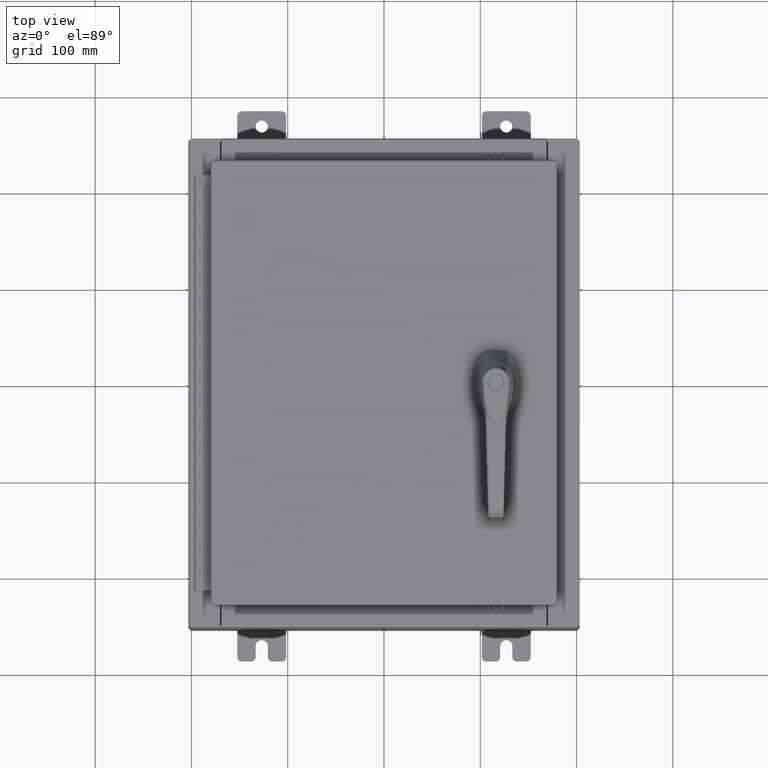
[diagram: clean part render]
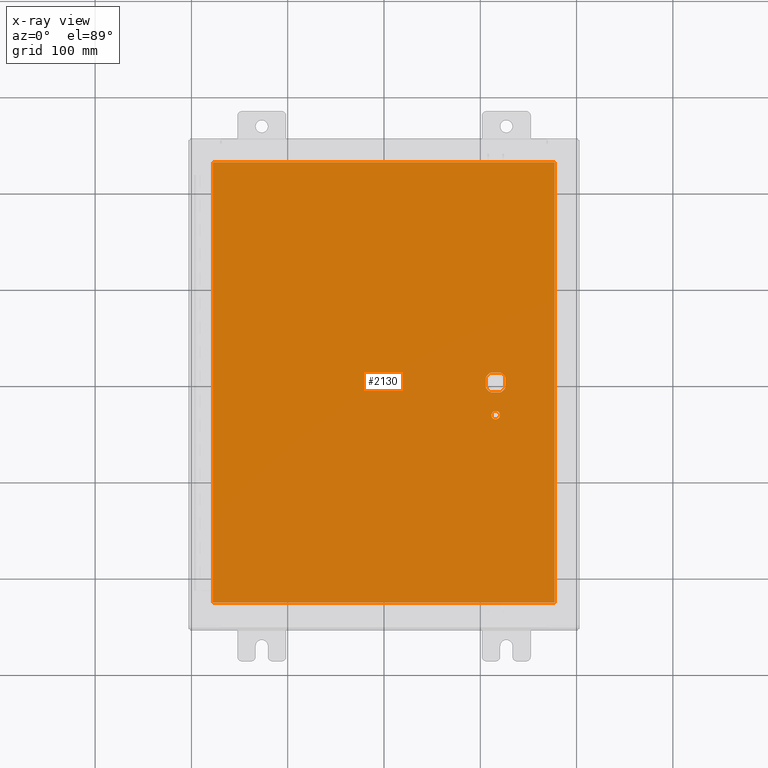
[diagram: x-ray — body ghosted, one internal face saturated and labeled with its STEP entity id]
A machine part, top view, then the same camera in x-ray: the body is ghosted and one INTERNAL B-rep face — a face not visible from any outside direction — is saturated and labeled: STEP entity #2130.
In plain terms, the highlighted planar face has unit normal (0, 0, -1).
Its self-contained STEP definition (entity closure, byte-faithful):
#1655 = DIRECTION ( 'NONE',  ( -1.000000000000000000, 0.0000000000000000000, -0.0000000000000000000 ) ) ;
#2130 = ADVANCED_FACE ( 'NONE', ( #65653, #20767, #107863 ), #76828, .T. ) ;
#3277 = DIRECTION ( 'NONE',  ( -1.000000000000000000, 0.0000000000000000000, 0.0000000000000000000 ) ) ;
#3808 = LINE ( 'NONE', #54818, #82957 ) ;
#4059 = ORIENTED_EDGE ( 'NONE', *, *, #90315, .T. ) ;
#5158 = VECTOR ( 'NONE', #62514, 39.37007874015748100 ) ;
#5991 = CARTESIAN_POINT ( 'NONE',  ( 4.175000000000076200, 0.2002273707563080300, -0.07470000000000003000 ) ) ;
#6260 = CARTESIAN_POINT ( 'NONE',  ( 4.406500000000002100, -1.338000000000000100, -0.07470000000000003000 ) ) ;
#7059 = CIRCLE ( 'NONE', #13108, 0.4499999999999156900 ) ;
#9308 = CARTESIAN_POINT ( 'NONE',  ( 6.990300000000002200, -9.006299999999997800, -0.07470000000000021100 ) ) ;
#9763 = DIRECTION ( 'NONE',  ( -0.0000000000000000000, -0.0000000000000000000, 1.000000000000000000 ) ) ;
#10054 = CARTESIAN_POINT ( 'NONE',  ( 4.578000000000002100, -1.338000000000000100, -0.07470000000000003000 ) ) ;
#10498 = LINE ( 'NONE', #44274, #97574 ) ;
#10701 = DIRECTION ( 'NONE',  ( 0.0000000000000000000, -1.000000000000000000, 0.0000000000000000000 ) ) ;
#11183 = VECTOR ( 'NONE', #51341, 39.37007874015748100 ) ;
#11954 = CARTESIAN_POINT ( 'NONE',  ( 4.175000000000076200, 0.0000000000000000000, -0.07470000000000003000 ) ) ;
#12486 = ORIENTED_EDGE ( 'NONE', *, *, #73959, .T. ) ;
#13076 = VECTOR ( 'NONE', #26271, 39.37007874015748100 ) ;
#13108 = AXIS2_PLACEMENT_3D ( 'NONE', #85582, #35050, #94031 ) ;
#14029 = EDGE_CURVE ( 'NONE', #91412, #40145, #105354, .T. ) ;
#17669 = AXIS2_PLACEMENT_3D ( 'NONE', #104328, #53826, #3277 ) ;
#18594 = DIRECTION ( 'NONE',  ( -1.000000000000000000, 0.0000000000000000000, 0.0000000000000000000 ) ) ;
#18632 = CARTESIAN_POINT ( 'NONE',  ( -6.990299999999997700, 9.006299999999999500, -0.07470000000000000300 ) ) ;
#19094 = EDGE_CURVE ( 'NONE', #52332, #63675, #43601, .T. ) ;
#19163 = ORIENTED_EDGE ( 'NONE', *, *, #64073, .T. ) ;
#20767 = FACE_OUTER_BOUND ( 'NONE', #101714, .T. ) ;
#21519 = EDGE_CURVE ( 'NONE', #106551, #77066, #32925, .T. ) ;
#22944 = VERTEX_POINT ( 'NONE', #88454 ) ;
#23485 = CARTESIAN_POINT ( 'NONE',  ( 4.778227370756312100, -0.4029999999999252000, -0.07470000000000003000 ) ) ;
#23621 = DIRECTION ( 'NONE',  ( 1.000000000000000000, 0.0000000000000000000, 0.0000000000000000000 ) ) ;
#25020 = EDGE_LOOP ( 'NONE', ( #4059, #89591, #37312, #69638, #103235, #12486, #79730, #72258 ) ) ;
#26271 = DIRECTION ( 'NONE',  ( 0.0000000000000000000, 1.000000000000000000, 0.0000000000000000000 ) ) ;
#26737 = CARTESIAN_POINT ( 'NONE',  ( -6.990299999999996800, -9.006299999999997800, -0.07470000000000000300 ) ) ;
#27256 = CARTESIAN_POINT ( 'NONE',  ( 4.578000000000002100, 0.0000000000000000000, -0.07470000000000003000 ) ) ;
#28432 = CARTESIAN_POINT ( 'NONE',  ( 4.980999999999927900, -0.2002273707563080300, -0.07470000000000003000 ) ) ;
#29225 = ORIENTED_EDGE ( 'NONE', *, *, #41749, .F. ) ;
#30460 = VERTEX_POINT ( 'NONE', #26737 ) ;
#31049 = CIRCLE ( 'NONE', #80181, 0.4499999999999156900 ) ;
#32925 = LINE ( 'NONE', #9308, #13076 ) ;
#34282 = VERTEX_POINT ( 'NONE', #6260 ) ;
#35050 = DIRECTION ( 'NONE',  ( -0.0000000000000000000, -0.0000000000000000000, 1.000000000000000000 ) ) ;
#35051 = DIRECTION ( 'NONE',  ( 0.0000000000000000000, -1.000000000000000000, 0.0000000000000000000 ) ) ;
#35455 = AXIS2_PLACEMENT_3D ( 'NONE', #60327, #9763, #68828 ) ;
#35772 = DIRECTION ( 'NONE',  ( -1.000000000000000000, 0.0000000000000000000, 0.0000000000000000000 ) ) ;
#36146 = CIRCLE ( 'NONE', #53896, 0.4499999999999156900 ) ;
#37258 = CARTESIAN_POINT ( 'NONE',  ( 4.377772629243692900, -0.4029999999999250300, -0.07470000000000003000 ) ) ;
#37312 = ORIENTED_EDGE ( 'NONE', *, *, #57536, .T. ) ;
#38726 = VERTEX_POINT ( 'NONE', #5991 ) ;
#38793 = DIRECTION ( 'NONE',  ( -1.000000000000000000, 0.0000000000000000000, 0.0000000000000000000 ) ) ;
#39184 = VECTOR ( 'NONE', #38793, 39.37007874015748100 ) ;
#39303 = ORIENTED_EDGE ( 'NONE', *, *, #55820, .F. ) ;
#39822 = CARTESIAN_POINT ( 'NONE',  ( 4.578000000000002100, 0.0000000000000000000, -0.07470000000000003000 ) ) ;
#40145 = VERTEX_POINT ( 'NONE', #51263 ) ;
#41749 = EDGE_CURVE ( 'NONE', #42878, #30460, #10498, .T. ) ;
#42823 = CARTESIAN_POINT ( 'NONE',  ( -6.990299999999997700, -9.006299999999997800, -0.07470000000000021100 ) ) ;
#42878 = VERTEX_POINT ( 'NONE', #18632 ) ;
#43601 = LINE ( 'NONE', #77050, #77828 ) ;
#44274 = CARTESIAN_POINT ( 'NONE',  ( -6.990299999999997700, 9.006300000000001300, -0.07470000000000019700 ) ) ;
#44566 = VERTEX_POINT ( 'NONE', #88724 ) ;
#46863 = EDGE_CURVE ( 'NONE', #40145, #38726, #31049, .T. ) ;
#48303 = DIRECTION ( 'NONE',  ( -1.000000000000000000, 0.0000000000000000000, 0.0000000000000000000 ) ) ;
#48381 = CARTESIAN_POINT ( 'NONE',  ( 6.990300000000002200, -9.006299999999997800, -0.07470000000000000300 ) ) ;
#50096 = LINE ( 'NONE', #11954, #5158 ) ;
#50411 = CARTESIAN_POINT ( 'NONE',  ( 6.990300000000001300, 9.006300000000001300, -0.07470000000000000300 ) ) ;
#50906 = CARTESIAN_POINT ( 'NONE',  ( 4.778227370756312100, 0.4029999999999250300, -0.07470000000000003000 ) ) ;
#51263 = CARTESIAN_POINT ( 'NONE',  ( 4.377772629243692900, 0.4029999999999252000, -0.07470000000000003000 ) ) ;
#51341 = DIRECTION ( 'NONE',  ( 1.000000000000000000, -0.0000000000000000000, -0.0000000000000000000 ) ) ;
#51358 = VERTEX_POINT ( 'NONE', #37258 ) ;
#52188 = DIRECTION ( 'NONE',  ( 0.0000000000000000000, 0.0000000000000000000, -1.000000000000000000 ) ) ;
#52332 = VERTEX_POINT ( 'NONE', #90215 ) ;
#53826 = DIRECTION ( 'NONE',  ( -0.0000000000000000000, -0.0000000000000000000, 1.000000000000000000 ) ) ;
#53896 = AXIS2_PLACEMENT_3D ( 'NONE', #39822, #98790, #48303 ) ;
#54818 = CARTESIAN_POINT ( 'NONE',  ( 6.990300000000002200, 9.006300000000001300, -0.07470000000000076600 ) ) ;
#55820 = EDGE_CURVE ( 'NONE', #30460, #106551, #61384, .T. ) ;
#57536 = EDGE_CURVE ( 'NONE', #52332, #91412, #7059, .T. ) ;
#60327 = CARTESIAN_POINT ( 'NONE',  ( 4.578000000000002100, 0.0000000000000000000, -0.07470000000000003000 ) ) ;
#61354 = EDGE_LOOP ( 'NONE', ( #72358, #19163 ) ) ;
#61384 = LINE ( 'NONE', #42823, #11183 ) ;
#62514 = DIRECTION ( 'NONE',  ( 0.0000000000000000000, -1.000000000000000000, 0.0000000000000000000 ) ) ;
#63229 = EDGE_CURVE ( 'NONE', #77066, #42878, #3808, .T. ) ;
#63675 = VERTEX_POINT ( 'NONE', #28432 ) ;
#64073 = EDGE_CURVE ( 'NONE', #34282, #22944, #88148, .T. ) ;
#65653 = FACE_BOUND ( 'NONE', #61354, .T. ) ;
#67235 = ORIENTED_EDGE ( 'NONE', *, *, #21519, .F. ) ;
#68828 = DIRECTION ( 'NONE',  ( -1.000000000000000000, 8.881784197001256300E-016, 0.0000000000000000000 ) ) ;
#69122 = DIRECTION ( 'NONE',  ( -0.0000000000000000000, -0.0000000000000000000, 1.000000000000000000 ) ) ;
#69638 = ORIENTED_EDGE ( 'NONE', *, *, #14029, .T. ) ;
#72258 = ORIENTED_EDGE ( 'NONE', *, *, #102541, .T. ) ;
#72358 = ORIENTED_EDGE ( 'NONE', *, *, #103905, .T. ) ;
#73959 = EDGE_CURVE ( 'NONE', #38726, #44566, #50096, .T. ) ;
#75509 = ORIENTED_EDGE ( 'NONE', *, *, #63229, .F. ) ;
#76828 = PLANE ( 'NONE',  #109125 ) ;
#77047 = CIRCLE ( 'NONE', #89019, 0.1715000000000000700 ) ;
#77050 = CARTESIAN_POINT ( 'NONE',  ( 4.980999999999927900, 0.0000000000000000000, -0.07470000000000003000 ) ) ;
#77066 = VERTEX_POINT ( 'NONE', #50411 ) ;
#77828 = VECTOR ( 'NONE', #35051, 39.37007874015748100 ) ;
#79730 = ORIENTED_EDGE ( 'NONE', *, *, #89468, .T. ) ;
#80181 = AXIS2_PLACEMENT_3D ( 'NONE', #27256, #86278, #35772 ) ;
#82609 = CARTESIAN_POINT ( 'NONE',  ( 0.0000000000000000000, -0.4029999999999252000, -0.07470000000000003000 ) ) ;
#82957 = VECTOR ( 'NONE', #105299, 39.37007874015748100 ) ;
#85474 = VERTEX_POINT ( 'NONE', #23485 ) ;
#85582 = CARTESIAN_POINT ( 'NONE',  ( 4.578000000000002100, 0.0000000000000000000, -0.07470000000000003000 ) ) ;
#85711 = CARTESIAN_POINT ( 'NONE',  ( 0.0000000000000000000, 0.0000000000000000000, -0.07470000000000000300 ) ) ;
#86278 = DIRECTION ( 'NONE',  ( -0.0000000000000000000, -0.0000000000000000000, 1.000000000000000000 ) ) ;
#88148 = CIRCLE ( 'NONE', #17669, 0.1715000000000000700 ) ;
#88454 = CARTESIAN_POINT ( 'NONE',  ( 4.749500000000002100, -1.338000000000000100, -0.07470000000000003000 ) ) ;
#88724 = CARTESIAN_POINT ( 'NONE',  ( 4.175000000000076200, -0.2002273707563079800, -0.07470000000000003000 ) ) ;
#89019 = AXIS2_PLACEMENT_3D ( 'NONE', #10054, #69122, #18594 ) ;
#89468 = EDGE_CURVE ( 'NONE', #44566, #51358, #100899, .T. ) ;
#89591 = ORIENTED_EDGE ( 'NONE', *, *, #19094, .F. ) ;
#90215 = CARTESIAN_POINT ( 'NONE',  ( 4.980999999999927900, 0.2002273707563080300, -0.07470000000000003000 ) ) ;
#90315 = EDGE_CURVE ( 'NONE', #85474, #63675, #36146, .T. ) ;
#90394 = LINE ( 'NONE', #82609, #93037 ) ;
#91412 = VERTEX_POINT ( 'NONE', #50906 ) ;
#93037 = VECTOR ( 'NONE', #23621, 39.37007874015748100 ) ;
#94031 = DIRECTION ( 'NONE',  ( -1.000000000000000000, 0.0000000000000000000, 0.0000000000000000000 ) ) ;
#97574 = VECTOR ( 'NONE', #10701, 39.37007874015748100 ) ;
#97790 = CARTESIAN_POINT ( 'NONE',  ( 0.0000000000000000000, 0.4029999999999252000, -0.07470000000000003000 ) ) ;
#98790 = DIRECTION ( 'NONE',  ( -0.0000000000000000000, -0.0000000000000000000, 1.000000000000000000 ) ) ;
#100899 = CIRCLE ( 'NONE', #35455, 0.4499999999999156900 ) ;
#101714 = EDGE_LOOP ( 'NONE', ( #67235, #39303, #29225, #75509 ) ) ;
#102541 = EDGE_CURVE ( 'NONE', #51358, #85474, #90394, .T. ) ;
#103235 = ORIENTED_EDGE ( 'NONE', *, *, #46863, .T. ) ;
#103905 = EDGE_CURVE ( 'NONE', #22944, #34282, #77047, .T. ) ;
#104328 = CARTESIAN_POINT ( 'NONE',  ( 4.578000000000002100, -1.338000000000000100, -0.07470000000000003000 ) ) ;
#105299 = DIRECTION ( 'NONE',  ( -1.000000000000000000, -0.0000000000000000000, -0.0000000000000000000 ) ) ;
#105354 = LINE ( 'NONE', #97790, #39184 ) ;
#106551 = VERTEX_POINT ( 'NONE', #48381 ) ;
#107863 = FACE_BOUND ( 'NONE', #25020, .T. ) ;
#109125 = AXIS2_PLACEMENT_3D ( 'NONE', #85711, #52188, #1655 ) ;